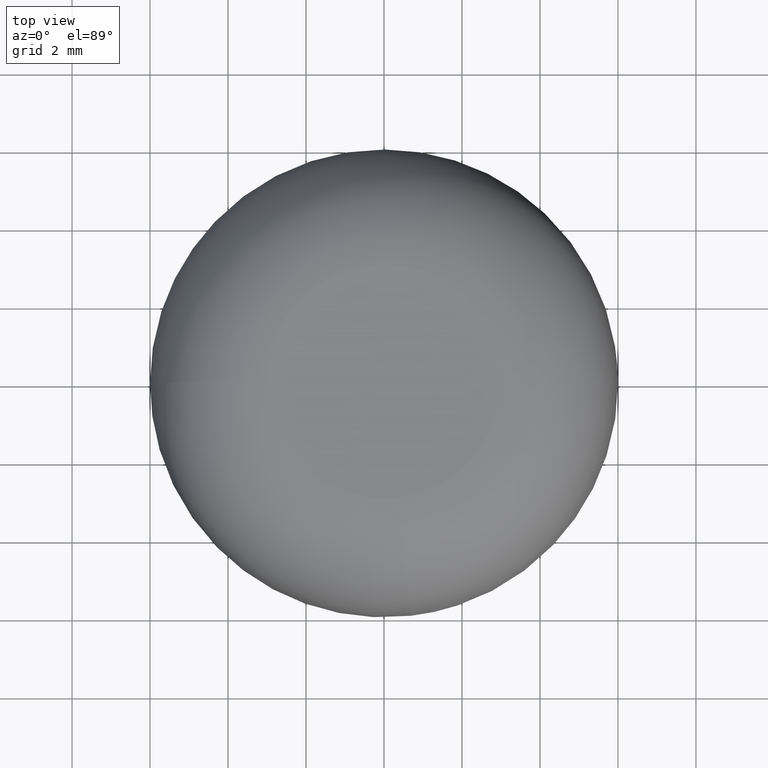
[diagram: clean part render]
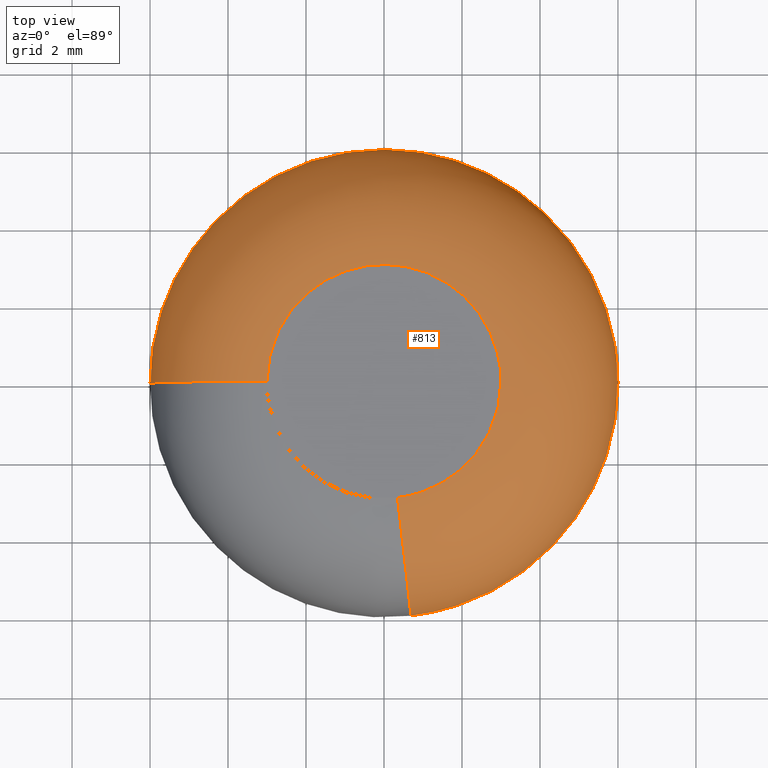
[diagram: same view with one face highlighted and labeled with its STEP entity id]
A machine part, top view. The second image highlights one B-rep face of the part: STEP entity #813.
In plain terms, the highlighted face is a freeform B-spline surface patch.
Its self-contained STEP definition (entity closure, byte-faithful):
#639=CARTESIAN_POINT('',(0.346389949444833,-2.979935234684809,8.0));
#640=VERTEX_POINT('',#639);
#641=CARTESIAN_POINT('',(-3.0,0.0,8.0));
#642=VERTEX_POINT('',#641);
#658=CARTESIAN_POINT('',(-6.0,0.0,5.0));
#659=VERTEX_POINT('',#658);
#660=CARTESIAN_POINT('',(-6.0,0.0,5.0));
#661=CARTESIAN_POINT('',(-6.000000000000001,0.0,8.000000000000002));
#662=CARTESIAN_POINT('',(-3.0,0.0,8.0));
#670=(BOUNDED_CURVE()B_SPLINE_CURVE(2,(#660,#661,#662),.UNSPECIFIED.,.F.,.U.)B_SPLINE_CURVE_WITH_KNOTS((3,3),(0.0,0.250000000000000),.UNSPECIFIED.)CURVE()GEOMETRIC_REPRESENTATION_ITEM()RATIONAL_B_SPLINE_CURVE((1.0,0.707106781186547,1.0))REPRESENTATION_ITEM(''));
#671=EDGE_CURVE('',#659,#642,#670,.T.);
#673=CARTESIAN_POINT('',(0.692785140352022,-5.959869860098236,5.0));
#674=VERTEX_POINT('',#673);
#690=CARTESIAN_POINT('',(0.692785140352022,-5.959869860098236,5.0));
#691=CARTESIAN_POINT('',(0.692783888889185,-5.959870005570403,8.000000000002533));
#692=CARTESIAN_POINT('',(0.346389949444833,-2.979935234684809,8.0));
#700=(BOUNDED_CURVE()B_SPLINE_CURVE(2,(#690,#691,#692),.UNSPECIFIED.,.F.,.U.)B_SPLINE_CURVE_WITH_KNOTS((3,3),(0.0,0.250000000000149),.UNSPECIFIED.)CURVE()GEOMETRIC_REPRESENTATION_ITEM()RATIONAL_B_SPLINE_CURVE((0.956886118190660,0.676620662995720,0.956886118190994))REPRESENTATION_ITEM(''));
#701=EDGE_CURVE('',#674,#640,#700,.T.);
#706=CARTESIAN_POINT('',(-6.0,0.0,5.0));
#707=CARTESIAN_POINT('',(-6.0,0.0,8.0));
#708=CARTESIAN_POINT('',(-3.0,0.0,8.0));
#709=CARTESIAN_POINT('',(-2.892466836912616,0.0,8.0));
#710=CARTESIAN_POINT('',(-2.785209640802306,0.0,7.992300971091599));
#711=CARTESIAN_POINT('',(-6.0,6.0,5.000000000000001));
#712=CARTESIAN_POINT('',(-6.0,6.0,8.0));
#713=CARTESIAN_POINT('',(-3.0,3.0,8.0));
#714=CARTESIAN_POINT('',(-2.892466836912616,2.892466836912616,8.0));
#715=CARTESIAN_POINT('',(-2.785209640802309,2.785209640802309,7.992300971091600));
#716=CARTESIAN_POINT('',(0.0,6.0,5.0));
#717=CARTESIAN_POINT('',(0.0,6.0,8.0));
#718=CARTESIAN_POINT('',(0.0,3.0,8.0));
#719=CARTESIAN_POINT('',(0.0,2.892466836912616,8.0));
#720=CARTESIAN_POINT('',(0.0,2.785209640802306,7.992300971091599));
#721=CARTESIAN_POINT('',(6.0,6.0,5.000000000000001));
#722=CARTESIAN_POINT('',(6.0,6.0,8.0));
#723=CARTESIAN_POINT('',(3.0,3.0,8.0));
#724=CARTESIAN_POINT('',(2.892466836912616,2.892466836912616,8.0));
#725=CARTESIAN_POINT('',(2.785209640802309,2.785209640802309,7.992300971091600));
#726=CARTESIAN_POINT('',(6.0,0.0,5.0));
#727=CARTESIAN_POINT('',(6.0,0.0,8.0));
#728=CARTESIAN_POINT('',(3.0,0.0,8.0));
#729=CARTESIAN_POINT('',(2.892466836912616,0.0,8.0));
#730=CARTESIAN_POINT('',(2.785209640802306,0.0,7.992300971091599));
#731=CARTESIAN_POINT('',(6.000000000000001,-5.342950204961662,4.999999999999998));
#732=CARTESIAN_POINT('',(6.000000000000001,-5.342950204961663,8.0));
#733=CARTESIAN_POINT('',(3.000000000000000,-2.671475102480832,8.0));
#734=CARTESIAN_POINT('',(2.892466836912617,-2.575717713187847,8.0));
#735=CARTESIAN_POINT('',(2.785209640802308,-2.480206070197648,7.992300971091598));
#736=CARTESIAN_POINT('',(0.692785375962444,-5.959869832710492,5.000000000000001));
#737=CARTESIAN_POINT('',(0.692785375962444,-5.959869832710492,8.0));
#738=CARTESIAN_POINT('',(0.346392687981222,-2.979934916355245,8.0));
#739=CARTESIAN_POINT('',(0.333976454178235,-2.873120973905173,8.000000000000002));
#740=CARTESIAN_POINT('',(0.321592084689575,-2.766581152665349,7.992300971091601));
#748=(BOUNDED_SURFACE()B_SPLINE_SURFACE(2,2,((#706,#711,#716,#721,#726,#731,#736),(#707,#712,#717,#722,#727,#732,#737),(#708,#713,#718,#723,#728,#733,#738),(#709,#714,#719,#724,#729,#734,#739),(#710,#715,#720,#725,#730,#735,#740)),.UNSPECIFIED.,.F.,.F.,.U.)B_SPLINE_SURFACE_WITH_KNOTS((3,2,3),(3,2,2,3),(0.0,4.970562748477142,5.218842357763575),(0.0,9.941125496954282,19.882250993908560,29.028086451106500),.UNSPECIFIED.)GEOMETRIC_REPRESENTATION_ITEM()RATIONAL_B_SPLINE_SURFACE(((1.0,0.707106781186548,1.0,0.707106781186548,1.0,0.730538238691624,0.956886118190660),(0.707106781186548,0.500000000000000,0.707106781186548,0.500000000000000,0.707106781186548,0.516568542494924,0.676620662995888),(1.0,0.707106781186548,1.0,0.707106781186548,1.0,0.730538238691624,0.956886118190660),(0.985369983720268,0.696761797466280,0.985369983720268,0.696761797466280,0.985369983720268,0.719850452366599,0.942886858703681),(0.972201506066881,0.687450277619666,0.972201506066881,0.687450277619666,0.972201506066881,0.710230375895443,0.930286125239451)))REPRESENTATION_ITEM('')SURFACE());
#749=CARTESIAN_POINT('',(3.0,0.0,8.0));
#750=VERTEX_POINT('',#749);
#751=CARTESIAN_POINT('',(3.0,0.0,8.0));
#752=CARTESIAN_POINT('',(3.000000000000000,-2.671477574076783,8.0));
#753=CARTESIAN_POINT('',(0.346389949444833,-2.979935234684809,8.000000000000002));
#761=(BOUNDED_CURVE()B_SPLINE_CURVE(2,(#751,#752,#753),.UNSPECIFIED.,.F.,.U.)B_SPLINE_CURVE_WITH_KNOTS((3,3),(0.500000000000000,0.730000155452255),.UNSPECIFIED.)CURVE()GEOMETRIC_REPRESENTATION_ITEM()RATIONAL_B_SPLINE_CURVE((1.0,0.730538056567979,0.956886424158610))REPRESENTATION_ITEM(''));
#762=EDGE_CURVE('',#750,#640,#761,.T.);
#763=ORIENTED_EDGE('',*,*,#762,.T.);
#764=ORIENTED_EDGE('',*,*,#701,.F.);
#765=CARTESIAN_POINT('',(6.0,0.0,5.0));
#766=VERTEX_POINT('',#765);
#767=CARTESIAN_POINT('',(6.0,0.0,5.0));
#768=CARTESIAN_POINT('',(6.000000000000001,-5.342950630249837,4.999999999999999));
#769=CARTESIAN_POINT('',(0.692785140352022,-5.959869860098236,5.0));
#777=(BOUNDED_CURVE()B_SPLINE_CURVE(2,(#767,#768,#769),.UNSPECIFIED.,.F.,.U.)B_SPLINE_CURVE_WITH_KNOTS((3,3),(0.500000000000000,0.730000013374358),.UNSPECIFIED.)CURVE()GEOMETRIC_REPRESENTATION_ITEM()RATIONAL_B_SPLINE_CURVE((1.0,0.730538223022588,0.956886144514641))REPRESENTATION_ITEM(''));
#778=EDGE_CURVE('',#766,#674,#777,.T.);
#779=ORIENTED_EDGE('',*,*,#778,.F.);
#780=CARTESIAN_POINT('',(-6.0,0.0,5.0));
#781=CARTESIAN_POINT('',(-6.0,6.0,5.000000000000001));
#782=CARTESIAN_POINT('',(0.0,6.0,5.0));
#783=CARTESIAN_POINT('',(6.0,6.0,5.000000000000001));
#784=CARTESIAN_POINT('',(6.0,0.0,5.0));
#792=(BOUNDED_CURVE()B_SPLINE_CURVE(2,(#780,#781,#782,#783,#784),.UNSPECIFIED.,.F.,.U.)B_SPLINE_CURVE_WITH_KNOTS((3,2,3),(0.0,0.250000000000000,0.500000000000000),.UNSPECIFIED.)CURVE()GEOMETRIC_REPRESENTATION_ITEM()RATIONAL_B_SPLINE_CURVE((1.0,0.707106781186548,1.0,0.707106781186548,1.0))REPRESENTATION_ITEM(''));
#793=EDGE_CURVE('',#659,#766,#792,.T.);
#794=ORIENTED_EDGE('',*,*,#793,.F.);
#795=ORIENTED_EDGE('',*,*,#671,.T.);
#796=CARTESIAN_POINT('',(-3.0,0.0,8.0));
#797=CARTESIAN_POINT('',(-3.0,3.0,8.0));
#798=CARTESIAN_POINT('',(0.0,3.0,8.0));
#799=CARTESIAN_POINT('',(3.0,3.0,8.0));
#800=CARTESIAN_POINT('',(3.0,0.0,8.0));
#808=(BOUNDED_CURVE()B_SPLINE_CURVE(2,(#796,#797,#798,#799,#800),.UNSPECIFIED.,.F.,.U.)B_SPLINE_CURVE_WITH_KNOTS((3,2,3),(0.0,0.250000000000000,0.500000000000000),.UNSPECIFIED.)CURVE()GEOMETRIC_REPRESENTATION_ITEM()RATIONAL_B_SPLINE_CURVE((1.0,0.707106781186548,1.0,0.707106781186548,1.0))REPRESENTATION_ITEM(''));
#809=EDGE_CURVE('',#642,#750,#808,.T.);
#810=ORIENTED_EDGE('',*,*,#809,.T.);
#811=EDGE_LOOP('',(#763,#764,#779,#794,#795,#810));
#812=FACE_OUTER_BOUND('',#811,.T.);
#813=ADVANCED_FACE('',(#812),#748,.T.);